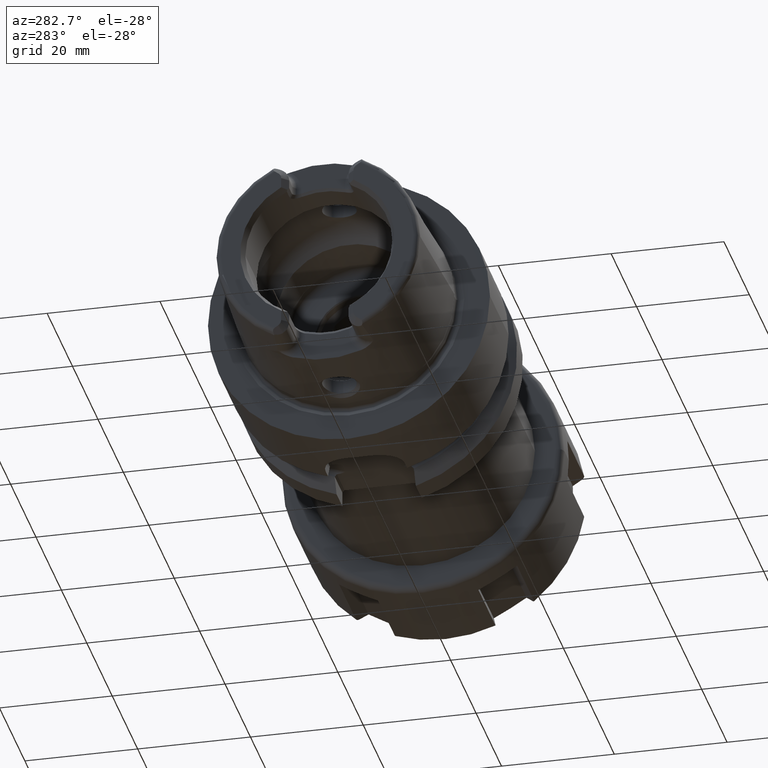
[diagram: clean part render]
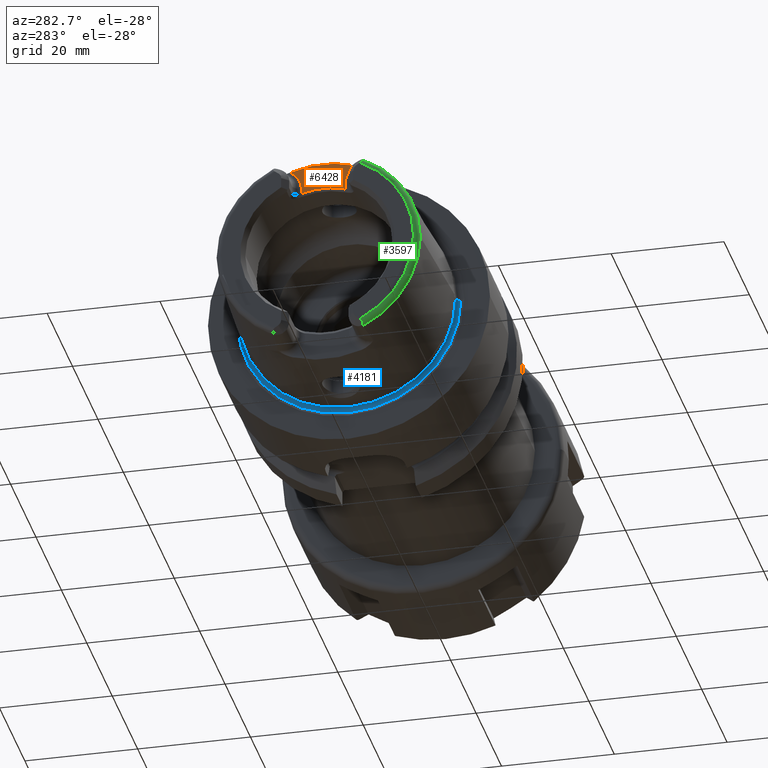
[diagram: same view with three faces highlighted in distinct colors, each labeled with its STEP entity id]
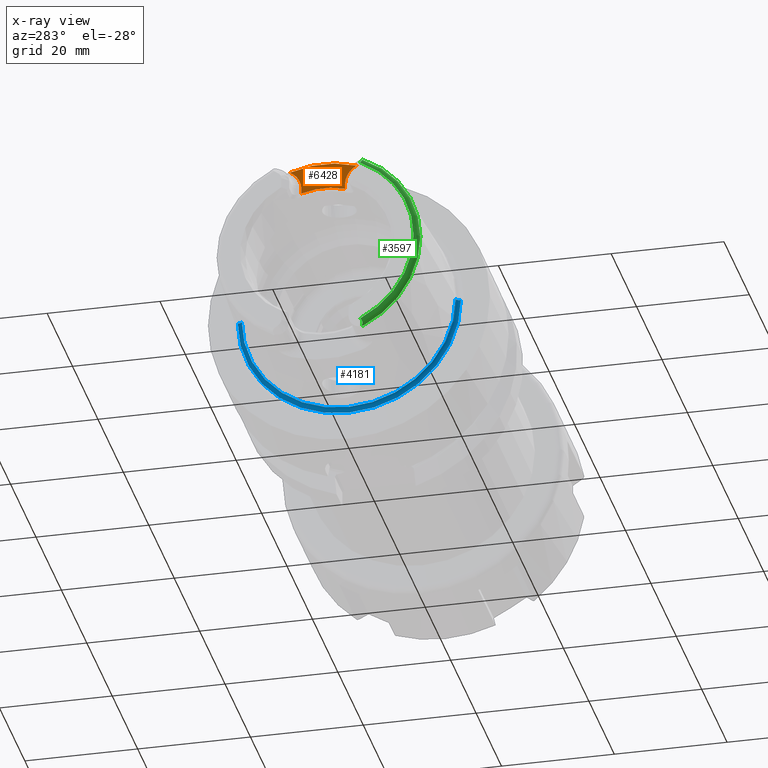
[diagram: x-ray of the same camera — body ghosted, the three highlighted faces saturated]
A machine part, auxiliary view with three faces highlighted in distinct colors.
The next image is the same camera in x-ray (body ghosted, the three faces saturated) — at least one of them is partly hidden behind the body in this view.
Their STEP definitions:

[orange] entity #6428 — the highlighted planar face has unit normal (-1, 0, 0).
#8=CARTESIAN_POINT('',(-2.03E1,0.E0,0.E0));
#9=DIRECTION('',(1.E0,0.E0,0.E0));
#10=DIRECTION('',(0.E0,3.252089046527E-1,9.456421988969E-1));
#11=AXIS2_PLACEMENT_3D('',#8,#9,#10);
#2625=DIRECTION('',(0.E0,1.605967836501E-11,1.E0));
#2626=VECTOR('',#2625,9.474000707151E-1);
#2627=CARTESIAN_POINT('',(-2.03E1,3.869999999992E0,1.293259992922E1));
#2628=LINE('',#2627,#2626);
#2629=CARTESIAN_POINT('',(-2.03E1,7.65E0,1.388E1));
#2630=DIRECTION('',(-1.E0,0.E0,0.E0));
#2631=DIRECTION('',(0.E0,-1.E0,0.E0));
#2632=AXIS2_PLACEMENT_3D('',#2629,#2630,#2631);
#2634=CARTESIAN_POINT('',(-2.03E1,-7.65E0,1.388E1));
#2635=DIRECTION('',(-1.E0,0.E0,0.E0));
#2636=DIRECTION('',(0.E0,4.547221569343E-1,8.906333476762E-1));
#2637=AXIS2_PLACEMENT_3D('',#2634,#2635,#2636);
#2639=DIRECTION('',(0.E0,2.687081703110E-11,-1.E0));
#2640=VECTOR('',#2639,9.474000706860E-1);
#2641=CARTESIAN_POINT('',(-2.03E1,-3.870000000016E0,1.387999999991E1));
#2642=LINE('',#2641,#2640);
#2643=CARTESIAN_POINT('',(-2.03E1,3.869999999992E0,1.293259992922E1));
#2644=CARTESIAN_POINT('',(-2.03E1,3.367341739340E0,1.308906659587E1));
#2645=CARTESIAN_POINT('',(-2.03E1,2.351605461968E0,1.333894307947E1));
#2646=CARTESIAN_POINT('',(-2.03E1,7.869237642455E-1,1.352896153447E1));
#2647=CARTESIAN_POINT('',(-2.03E1,-7.869237642206E-1,1.352896153447E1));
#2648=CARTESIAN_POINT('',(-2.03E1,-2.351605461924E0,1.333894307948E1));
#2649=CARTESIAN_POINT('',(-2.03E1,-3.367341739321E0,1.308906659588E1));
#2650=CARTESIAN_POINT('',(-2.03E1,-3.869999999991E0,1.293259992922E1));
#2801=CARTESIAN_POINT('',(-2.03E1,3.87E0,1.388E1));
#2803=VERTEX_POINT('',#2801);
#2805=CARTESIAN_POINT('',(-2.03E1,-3.87E0,1.388E1));
#2807=VERTEX_POINT('',#2805);
#2809=CARTESIAN_POINT('',(-2.03E1,5.931150246788E0,1.724659405422E1));
#2810=VERTEX_POINT('',#2809);
#2815=CARTESIAN_POINT('',(-2.03E1,-5.931150246788E0,1.724659405422E1));
#2816=VERTEX_POINT('',#2815);
#2848=CARTESIAN_POINT('',(-2.03E1,3.869999999992E0,1.293259992922E1));
#2849=VERTEX_POINT('',#2848);
#2850=CARTESIAN_POINT('',(-2.03E1,-3.869999999991E0,1.293259992922E1));
#2851=VERTEX_POINT('',#2850);
#6413=CARTESIAN_POINT('',(-2.03E1,0.E0,0.E0));
#6414=DIRECTION('',(-1.E0,0.E0,0.E0));
#6415=DIRECTION('',(0.E0,0.E0,1.E0));
#6416=AXIS2_PLACEMENT_3D('',#6413,#6414,#6415);
#6417=PLANE('',#6416);
#6418=ORIENTED_EDGE('',*,*,#3494,.T.);
#6419=ORIENTED_EDGE('',*,*,#3512,.T.);
#6420=ORIENTED_EDGE('',*,*,#3274,.T.);
#6422=ORIENTED_EDGE('',*,*,#6421,.T.);
#6424=ORIENTED_EDGE('',*,*,#6423,.T.);
#6425=ORIENTED_EDGE('',*,*,#6404,.F.);
#6426=EDGE_LOOP('',(#6418,#6419,#6420,#6422,#6424,#6425));
#6427=FACE_OUTER_BOUND('',#6426,.F.);
#6428=ADVANCED_FACE('',(#6427),#6417,.T.);
#12=CIRCLE('',#11,1.823797E1);
#2633=CIRCLE('',#2632,3.78E0);
#2638=CIRCLE('',#2637,3.78E0);
#2651=B_SPLINE_CURVE_WITH_KNOTS('',3,(#2643,#2644,#2645,#2646,#2647,#2648,#2649,
#2650),.UNSPECIFIED.,.F.,.F.,(4,1,1,1,1,4),(0.E0,2.E-1,4.E-1,6.E-1,8.E-1,1.E0),
.UNSPECIFIED.);
#3274=EDGE_CURVE('',#2810,#2816,#12,.T.);
#3494=EDGE_CURVE('',#2849,#2803,#2628,.T.);
#3512=EDGE_CURVE('',#2803,#2810,#2633,.T.);
#6404=EDGE_CURVE('',#2849,#2851,#2651,.T.);
#6421=EDGE_CURVE('',#2816,#2807,#2638,.T.);
#6423=EDGE_CURVE('',#2807,#2851,#2642,.T.);

[blue] entity #4181 — the highlighted toroidal blend (fillet) surface has major radius 19.5548 mm and minor (blend) radius 0.6 mm.
#829=CARTESIAN_POINT('',(-3.021696305237E-1,0.E0,0.E0));
#830=DIRECTION('',(-1.E0,0.E0,0.E0));
#831=DIRECTION('',(0.E0,1.E0,0.E0));
#832=AXIS2_PLACEMENT_3D('',#829,#830,#831);
#844=CARTESIAN_POINT('',(-3.021696305237E-1,1.95548E1,0.E0));
#845=DIRECTION('',(0.E0,0.E0,-1.E0));
#846=DIRECTION('',(9.304175679820E-1,3.665012267243E-1,0.E0));
#847=AXIS2_PLACEMENT_3D('',#844,#845,#846);
#849=CARTESIAN_POINT('',(-3.021696305237E-1,-1.95548E1,0.E0));
#850=DIRECTION('',(0.E0,0.E0,1.E0));
#851=DIRECTION('',(9.304175679820E-1,-3.665012267243E-1,0.E0));
#852=AXIS2_PLACEMENT_3D('',#849,#850,#851);
#854=CARTESIAN_POINT('',(2.560809102655E-1,0.E0,0.E0));
#855=DIRECTION('',(-1.E0,0.E0,0.E0));
#856=DIRECTION('',(0.E0,1.E0,0.E0));
#857=AXIS2_PLACEMENT_3D('',#854,#855,#856);
#2757=CARTESIAN_POINT('',(2.560809102655E-1,-1.977470073603E1,0.E0));
#2758=CARTESIAN_POINT('',(-3.021696305237E-1,-1.89548E1,0.E0));
#2759=VERTEX_POINT('',#2757);
#2760=VERTEX_POINT('',#2758);
#2765=CARTESIAN_POINT('',(2.560809102655E-1,1.977470073603E1,0.E0));
#2766=CARTESIAN_POINT('',(-3.021696305237E-1,1.89548E1,0.E0));
#2767=VERTEX_POINT('',#2765);
#2768=VERTEX_POINT('',#2766);
#4169=CARTESIAN_POINT('',(-3.021696305237E-1,0.E0,0.E0));
#4170=DIRECTION('',(-1.E0,0.E0,0.E0));
#4171=DIRECTION('',(0.E0,-1.E0,0.E0));
#4172=AXIS2_PLACEMENT_3D('',#4169,#4170,#4171);
#4173=TOROIDAL_SURFACE('',#4172,1.95548E1,6.E-1);
#4174=ORIENTED_EDGE('',*,*,#4162,.T.);
#4175=ORIENTED_EDGE('',*,*,#4136,.T.);
#4176=ORIENTED_EDGE('',*,*,#4159,.F.);
#4178=ORIENTED_EDGE('',*,*,#4177,.F.);
#4179=EDGE_LOOP('',(#4174,#4175,#4176,#4178));
#4180=FACE_OUTER_BOUND('',#4179,.F.);
#4181=ADVANCED_FACE('',(#4180),#4173,.F.);
#833=CIRCLE('',#832,1.89548E1);
#848=CIRCLE('',#847,6.E-1);
#853=CIRCLE('',#852,6.E-1);
#858=CIRCLE('',#857,1.977470073603E1);
#4136=EDGE_CURVE('',#2768,#2760,#833,.T.);
#4159=EDGE_CURVE('',#2759,#2760,#853,.T.);
#4162=EDGE_CURVE('',#2767,#2768,#848,.T.);
#4177=EDGE_CURVE('',#2767,#2759,#858,.T.);

[green] entity #3597 — the highlighted toroidal blend (fillet) surface has major radius 17.0564 mm and minor (blend) radius 1 mm.
#349=CARTESIAN_POINT('',(-2.49E1,-7.544783891853E0,-1.529691173314E1));
#350=CARTESIAN_POINT('',(-2.49E1,-7.573571818077E0,-1.531653769016E1));
#351=CARTESIAN_POINT('',(-2.489728155480E1,-7.629153987391E0,
-1.535772050003E1));
#352=CARTESIAN_POINT('',(-2.488369366620E1,-7.707011470286E0,
-1.542724439023E1));
#353=CARTESIAN_POINT('',(-2.485976181664E1,-7.775213915386E0,
-1.550270509867E1));
#354=CARTESIAN_POINT('',(-2.482554894287E1,-7.831351740784E0,
-1.558238373959E1));
#355=CARTESIAN_POINT('',(-2.478051603101E1,-7.874904688229E0,
-1.566657798747E1));
#356=CARTESIAN_POINT('',(-2.472245852842E1,-7.904950492844E0,
-1.575732721672E1));
#357=CARTESIAN_POINT('',(-2.465012294207E1,-7.918165671235E0,
-1.585388274214E1));
#358=CARTESIAN_POINT('',(-2.456348848049E1,-7.911565558215E0,
-1.595423495364E1));
#359=CARTESIAN_POINT('',(-2.445933901158E1,-7.881065558196E0,
-1.605949162240E1));
#360=CARTESIAN_POINT('',(-2.434031300018E1,-7.823250379899E0,
-1.616413112254E1));
#361=CARTESIAN_POINT('',(-2.425582567505E1,-7.768067430635E0,
-1.622876371049E1));
#362=CARTESIAN_POINT('',(-2.421192926899E1,-7.735957706029E0,-1.626E1));
#364=CARTESIAN_POINT('',(-2.49E1,0.E0,0.E0));
#365=DIRECTION('',(-1.E0,0.E0,0.E0));
#366=DIRECTION('',(0.E0,-4.423444250631E-1,-8.968452539962E-1));
#367=AXIS2_PLACEMENT_3D('',#364,#365,#366);
#369=CARTESIAN_POINT('',(-2.421192926899E1,-7.735957706029E0,1.626E1));
#370=CARTESIAN_POINT('',(-2.425583231226E1,-7.768072285681E0,1.622875898751E1));
#371=CARTESIAN_POINT('',(-2.434033184818E1,-7.823262199091E0,1.616411636888E1));
#372=CARTESIAN_POINT('',(-2.445937366981E1,-7.881080235028E0,1.605945968213E1));
#373=CARTESIAN_POINT('',(-2.456353415230E1,-7.911575364322E0,1.595418636329E1));
#374=CARTESIAN_POINT('',(-2.465017924519E1,-7.918164814453E0,1.585381401561E1));
#375=CARTESIAN_POINT('',(-2.472252391503E1,-7.904930308012E0,1.575723431988E1));
#376=CARTESIAN_POINT('',(-2.478058070349E1,-7.874859204865E0,1.566646870783E1));
#377=CARTESIAN_POINT('',(-2.482560200513E1,-7.831284304746E0,1.558227354547E1));
#378=CARTESIAN_POINT('',(-2.485979561893E1,-7.775138335981E0,1.550261266279E1));
#379=CARTESIAN_POINT('',(-2.488370779609E1,-7.706948429724E0,1.542718431171E1));
#380=CARTESIAN_POINT('',(-2.489728334263E1,-7.629123221142E0,1.535769736158E1));
#381=CARTESIAN_POINT('',(-2.49E1,-7.573561201560E0,1.531653045242E1));
#382=CARTESIAN_POINT('',(-2.49E1,-7.544783891853E0,1.529691173314E1));
#384=CARTESIAN_POINT('',(-2.395003724237E1,-7.848512546022E0,1.626E1));
#385=CARTESIAN_POINT('',(-2.398205200909E1,-7.844822764222E0,1.626E1));
#386=CARTESIAN_POINT('',(-2.404404093899E1,-7.830728571291E0,1.626E1));
#387=CARTESIAN_POINT('',(-2.413339489162E1,-7.790719671913E0,1.626E1));
#388=CARTESIAN_POINT('',(-2.418634805448E1,-7.755506493033E0,1.626E1));
#389=CARTESIAN_POINT('',(-2.421192926899E1,-7.735957706029E0,1.626E1));
#391=CARTESIAN_POINT('',(-2.395003724237E1,0.E0,0.E0));
#392=DIRECTION('',(1.E0,0.E0,0.E0));
#393=DIRECTION('',(0.E0,-4.346977410045E-1,9.005764120637E-1));
#394=AXIS2_PLACEMENT_3D('',#391,#392,#393);
#396=CARTESIAN_POINT('',(-2.395003724237E1,0.E0,0.E0));
#397=DIRECTION('',(-1.E0,0.E0,0.E0));
#398=DIRECTION('',(0.E0,-4.346977410045E-1,-9.005764120637E-1));
#399=AXIS2_PLACEMENT_3D('',#396,#397,#398);
#401=CARTESIAN_POINT('',(-2.421192926899E1,-7.735957706029E0,-1.626E1));
#402=CARTESIAN_POINT('',(-2.418327713361E1,-7.757853245487E0,-1.626E1));
#403=CARTESIAN_POINT('',(-2.412554393897E1,-7.795219670859E0,-1.626E1));
#404=CARTESIAN_POINT('',(-2.403673963473E1,-7.832849293659E0,-1.626E1));
#405=CARTESIAN_POINT('',(-2.397885131924E1,-7.845191651719E0,-1.626E1));
#406=CARTESIAN_POINT('',(-2.395003724237E1,-7.848512546022E0,-1.626E1));
#2779=CARTESIAN_POINT('',(-2.395003724237E1,-1.805510313416E1,0.E0));
#2780=VERTEX_POINT('',#2779);
#2795=CARTESIAN_POINT('',(-2.395003724237E1,-7.848512546022E0,1.626E1));
#2796=VERTEX_POINT('',#2795);
#2799=CARTESIAN_POINT('',(-2.395003724237E1,-7.848512546022E0,-1.626E1));
#2800=VERTEX_POINT('',#2799);
#2900=CARTESIAN_POINT('',(-2.49E1,-7.544783891853E0,1.529691173314E1));
#2901=VERTEX_POINT('',#2900);
#2902=VERTEX_POINT('',#369);
#2932=CARTESIAN_POINT('',(-2.49E1,-7.544783891853E0,-1.529691173314E1));
#2933=VERTEX_POINT('',#2932);
#2934=VERTEX_POINT('',#362);
#3580=CARTESIAN_POINT('',(-2.39E1,0.E0,0.E0));
#3581=DIRECTION('',(1.E0,0.E0,0.E0));
#3582=DIRECTION('',(0.E0,-1.E0,0.E0));
#3583=AXIS2_PLACEMENT_3D('',#3580,#3581,#3582);
#3584=TOROIDAL_SURFACE('',#3583,1.705635578153E1,1.E0);
#3586=ORIENTED_EDGE('',*,*,#3585,.F.);
#3587=ORIENTED_EDGE('',*,*,#3373,.T.);
#3588=ORIENTED_EDGE('',*,*,#3330,.F.);
#3589=ORIENTED_EDGE('',*,*,#3313,.F.);
#3590=ORIENTED_EDGE('',*,*,#3290,.T.);
#3592=ORIENTED_EDGE('',*,*,#3591,.F.);
#3594=ORIENTED_EDGE('',*,*,#3593,.F.);
#3595=EDGE_LOOP('',(#3586,#3587,#3588,#3589,#3590,#3592,#3594));
#3596=FACE_OUTER_BOUND('',#3595,.F.);
#3597=ADVANCED_FACE('',(#3596),#3584,.T.);
#363=B_SPLINE_CURVE_WITH_KNOTS('',3,(#349,#350,#351,#352,#353,#354,#355,#356,
#357,#358,#359,#360,#361,#362),.UNSPECIFIED.,.F.,.F.,(4,1,1,1,1,1,1,1,1,1,1,4),(
0.E0,9.090909090909E-2,1.818181818182E-1,2.727272727273E-1,3.636363636364E-1,
4.545454545455E-1,5.454545454545E-1,6.363636363636E-1,7.272727272727E-1,
8.181818181818E-1,9.090909090909E-1,1.E0),.UNSPECIFIED.);
#368=CIRCLE('',#367,1.705635578153E1);
#383=B_SPLINE_CURVE_WITH_KNOTS('',3,(#369,#370,#371,#372,#373,#374,#375,#376,
#377,#378,#379,#380,#381,#382),.UNSPECIFIED.,.F.,.F.,(4,1,1,1,1,1,1,1,1,1,1,4),(
0.E0,9.090909090909E-2,1.818181818182E-1,2.727272727273E-1,3.636363636364E-1,
4.545454545455E-1,5.454545454545E-1,6.363636363636E-1,7.272727272727E-1,
8.181818181818E-1,9.090909090909E-1,1.E0),.UNSPECIFIED.);
#390=B_SPLINE_CURVE_WITH_KNOTS('',3,(#384,#385,#386,#387,#388,#389),
.UNSPECIFIED.,.F.,.F.,(4,1,1,4),(0.E0,3.333333333333E-1,6.666666666667E-1,1.E0),
.UNSPECIFIED.);
#395=CIRCLE('',#394,1.805510313416E1);
#400=CIRCLE('',#399,1.805510313416E1);
#407=B_SPLINE_CURVE_WITH_KNOTS('',3,(#401,#402,#403,#404,#405,#406),
.UNSPECIFIED.,.F.,.F.,(4,1,1,4),(0.E0,3.333333333333E-1,6.666666666667E-1,1.E0),
.UNSPECIFIED.);
#3290=EDGE_CURVE('',#2796,#2780,#395,.T.);
#3313=EDGE_CURVE('',#2796,#2902,#390,.T.);
#3330=EDGE_CURVE('',#2902,#2901,#383,.T.);
#3373=EDGE_CURVE('',#2933,#2901,#368,.T.);
#3585=EDGE_CURVE('',#2933,#2934,#363,.T.);
#3591=EDGE_CURVE('',#2800,#2780,#400,.T.);
#3593=EDGE_CURVE('',#2934,#2800,#407,.T.);